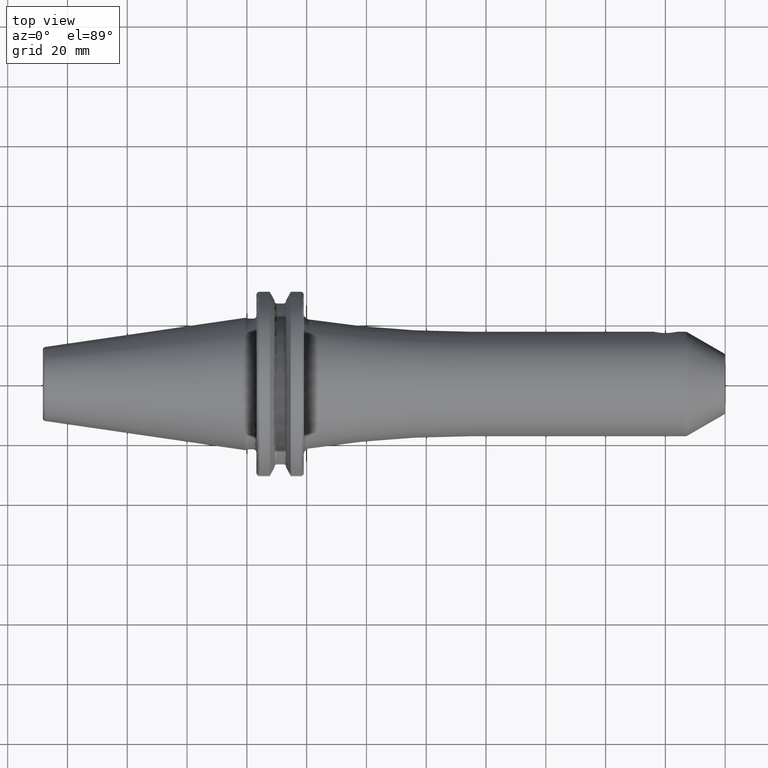
[diagram: clean part render]
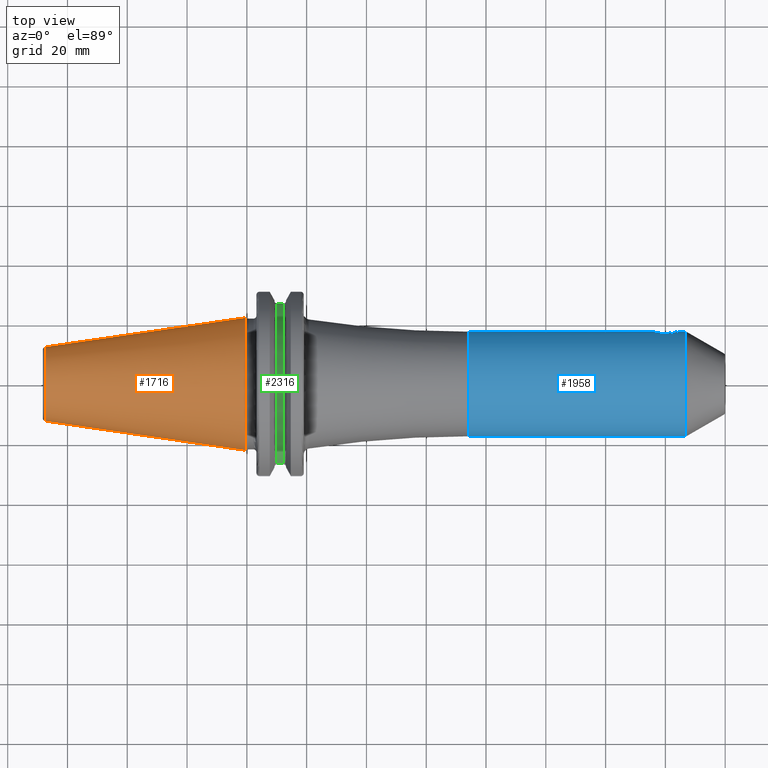
[diagram: same view with three faces highlighted in distinct colors, each labeled with its STEP entity id]
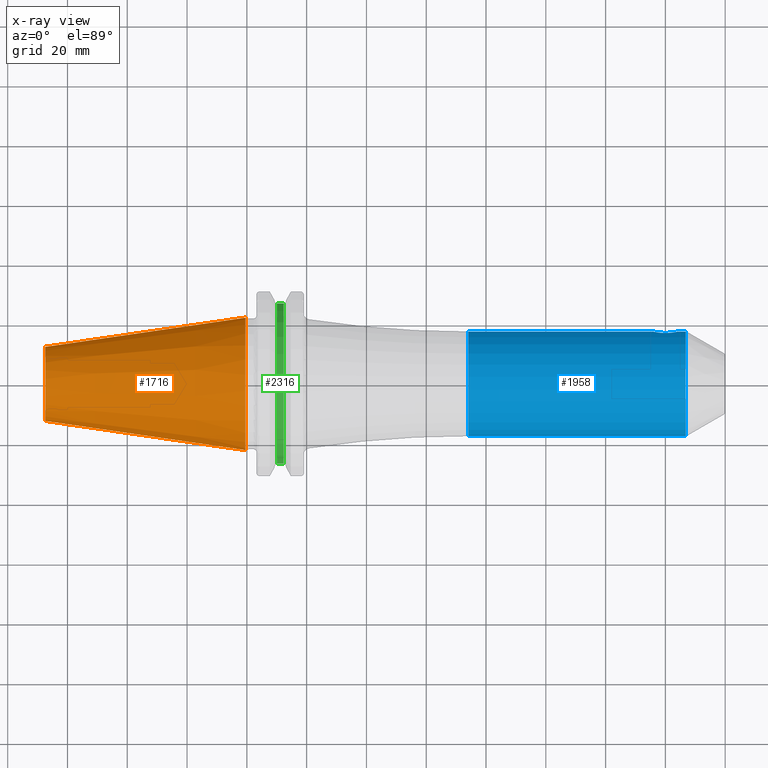
[diagram: x-ray of the same camera — body ghosted, the three highlighted faces saturated]
A machine part, top view with three faces highlighted in distinct colors.
The next image is the same camera in x-ray (body ghosted, the three faces saturated) — at least one of them is partly hidden behind the body in this view.
Their STEP definitions:

[orange] entity #1716 — the highlighted conical surface has half-angle 8.298 deg.
#37=CARTESIAN_POINT('',(-6.743710273571E1,0.E0,0.E0));
#38=DIRECTION('',(1.E0,0.E0,0.E0));
#39=DIRECTION('',(0.E0,1.E0,0.E0));
#40=AXIS2_PLACEMENT_3D('',#37,#38,#39);
#42=CARTESIAN_POINT('',(-4.896823332305E-1,0.E0,0.E0));
#43=DIRECTION('',(1.E0,0.E0,0.E0));
#44=DIRECTION('',(0.E0,1.E0,0.E0));
#45=AXIS2_PLACEMENT_3D('',#42,#43,#44);
#47=DIRECTION('',(-9.895312636440E-1,-1.443186691705E-1,0.E0));
#48=VECTOR('',#47,6.765568998391E1);
#49=CARTESIAN_POINT('',(-4.896823332305E-1,2.215358204157E1,0.E0));
#50=LINE('',#49,#48);
#51=DIRECTION('',(-9.895312636440E-1,1.443186691705E-1,0.E0));
#52=VECTOR('',#51,6.765568998391E1);
#53=CARTESIAN_POINT('',(-4.896823332305E-1,-2.215358204157E1,0.E0));
#54=LINE('',#53,#52);
#1386=CARTESIAN_POINT('',(-6.743710273571E1,1.238960290128E1,0.E0));
#1388=VERTEX_POINT('',#1386);
#1390=CARTESIAN_POINT('',(-6.743710273571E1,-1.238960290128E1,0.E0));
#1392=VERTEX_POINT('',#1390);
#1454=CARTESIAN_POINT('',(-4.896823332305E-1,2.215358204157E1,0.E0));
#1455=VERTEX_POINT('',#1454);
#1456=CARTESIAN_POINT('',(-4.896823332305E-1,-2.215358204157E1,0.E0));
#1457=VERTEX_POINT('',#1456);
#1702=CARTESIAN_POINT('',(-3.396339253447E1,0.E0,0.E0));
#1703=DIRECTION('',(1.E0,0.E0,0.E0));
#1704=DIRECTION('',(0.E0,-1.E0,0.E0));
#1705=AXIS2_PLACEMENT_3D('',#1702,#1703,#1704);
#1706=CONICAL_SURFACE('',#1705,1.727159247143E1,8.297826828206E0);
#1708=ORIENTED_EDGE('',*,*,#1707,.F.);
#1710=ORIENTED_EDGE('',*,*,#1709,.T.);
#1712=ORIENTED_EDGE('',*,*,#1711,.T.);
#1713=ORIENTED_EDGE('',*,*,#1695,.F.);
#1714=EDGE_LOOP('',(#1708,#1710,#1712,#1713));
#1715=FACE_OUTER_BOUND('',#1714,.F.);
#1716=ADVANCED_FACE('',(#1715),#1706,.T.);
#41=CIRCLE('',#40,1.238960290128E1);
#46=CIRCLE('',#45,2.215358204157E1);
#1695=EDGE_CURVE('',#1388,#1392,#41,.T.);
#1707=EDGE_CURVE('',#1455,#1388,#50,.T.);
#1709=EDGE_CURVE('',#1455,#1457,#46,.T.);
#1711=EDGE_CURVE('',#1457,#1392,#54,.T.);

[blue] entity #1958 — the highlighted cylindrical surface (partial cylindrical patch) has radius 17.5 mm, axis along (1, 0, 0).
#225=DIRECTION('',(-1.E0,0.E0,-1.077900183711E-13));
#226=VECTOR('',#225,7.268205080757E1);
#227=CARTESIAN_POINT('',(1.467320508076E2,-1.75E1,7.831452665642E-12));
#228=LINE('',#227,#226);
#234=DIRECTION('',(-1.E0,0.E0,3.155885247818E-12));
#235=VECTOR('',#234,2.482050807569E0);
#236=CARTESIAN_POINT('',(1.467320508076E2,1.75E1,-7.831995961991E-12));
#237=LINE('',#236,#235);
#261=DIRECTION('',(-1.E0,0.E0,0.E0));
#262=VECTOR('',#261,6.17E1);
#263=CARTESIAN_POINT('',(1.3575E2,1.75E1,0.E0));
#264=LINE('',#263,#262);
#265=CARTESIAN_POINT('',(7.405E1,0.E0,0.E0));
#266=DIRECTION('',(1.E0,0.E0,0.E0));
#267=DIRECTION('',(0.E0,1.E0,0.E0));
#268=AXIS2_PLACEMENT_3D('',#265,#266,#267);
#270=CARTESIAN_POINT('',(1.4425E2,1.75E1,0.E0));
#271=CARTESIAN_POINT('',(1.4425E2,1.75E1,2.278676570519E-1));
#272=CARTESIAN_POINT('',(1.442139953891E2,1.749120216321E1,6.785142573702E-1));
#273=CARTESIAN_POINT('',(1.440497416040E2,1.745203171727E1,1.349544966674E0));
#274=CARTESIAN_POINT('',(1.437805678172E2,1.739105675165E1,1.980794592051E0));
#275=CARTESIAN_POINT('',(1.434209064107E2,1.731585522841E1,2.551404466033E0));
#276=CARTESIAN_POINT('',(1.429779169871E2,1.723310522858E1,3.057278713351E0));
#277=CARTESIAN_POINT('',(1.424506090528E2,1.714897533070E1,3.495377039895E0));
#278=CARTESIAN_POINT('',(1.418453659631E2,1.707221628384E1,3.849926323690E0));
#279=CARTESIAN_POINT('',(1.411771795359E2,1.701192107247E1,4.105925484410E0));
#280=CARTESIAN_POINT('',(1.404244845071E2,1.697540010114E1,4.252879441657E0));
#281=CARTESIAN_POINT('',(1.396363646843E2,1.697395343074E1,4.258578046931E0));
#282=CARTESIAN_POINT('',(1.388796339850E2,1.700800053336E1,4.121973683701E0));
#283=CARTESIAN_POINT('',(1.382040782193E2,1.706682808551E1,3.873576730843E0));
#284=CARTESIAN_POINT('',(1.375886445233E2,1.714328886166E1,3.523080192707E0));
#285=CARTESIAN_POINT('',(1.370506408094E2,1.722809863779E1,3.085412924890E0));
#286=CARTESIAN_POINT('',(1.365981224097E2,1.731203733127E1,2.577456377236E0));
#287=CARTESIAN_POINT('',(1.362299703234E2,1.738872607665E1,2.001747237652E0));
#288=CARTESIAN_POINT('',(1.359548195628E2,1.745095563577E1,1.364458739173E0));
#289=CARTESIAN_POINT('',(1.357868504733E2,1.749099406596E1,6.863303247797E-1));
#290=CARTESIAN_POINT('',(1.3575E2,1.75E1,2.305520693747E-1));
#291=CARTESIAN_POINT('',(1.3575E2,1.75E1,0.E0));
#293=CARTESIAN_POINT('',(1.467320508076E2,0.E0,0.E0));
#294=DIRECTION('',(-1.E0,0.E0,0.E0));
#295=DIRECTION('',(0.E0,-1.E0,0.E0));
#296=AXIS2_PLACEMENT_3D('',#293,#294,#295);
#1613=CARTESIAN_POINT('',(1.467320508076E2,1.75E1,0.E0));
#1614=CARTESIAN_POINT('',(1.467320508076E2,-1.75E1,0.E0));
#1615=VERTEX_POINT('',#1613);
#1616=VERTEX_POINT('',#1614);
#1638=VERTEX_POINT('',#270);
#1639=VERTEX_POINT('',#291);
#1646=CARTESIAN_POINT('',(7.405E1,1.75E1,0.E0));
#1647=CARTESIAN_POINT('',(7.405E1,-1.75E1,0.E0));
#1648=VERTEX_POINT('',#1646);
#1649=VERTEX_POINT('',#1647);
#1943=CARTESIAN_POINT('',(1.20025E1,0.E0,0.E0));
#1944=DIRECTION('',(1.E0,0.E0,0.E0));
#1945=DIRECTION('',(0.E0,-1.E0,0.E0));
#1946=AXIS2_PLACEMENT_3D('',#1943,#1944,#1945);
#1947=CYLINDRICAL_SURFACE('',#1946,1.75E1);
#1948=ORIENTED_EDGE('',*,*,#1904,.F.);
#1949=ORIENTED_EDGE('',*,*,#1938,.F.);
#1951=ORIENTED_EDGE('',*,*,#1950,.F.);
#1952=ORIENTED_EDGE('',*,*,#1934,.F.);
#1954=ORIENTED_EDGE('',*,*,#1953,.F.);
#1955=ORIENTED_EDGE('',*,*,#1930,.T.);
#1956=EDGE_LOOP('',(#1948,#1949,#1951,#1952,#1954,#1955));
#1957=FACE_OUTER_BOUND('',#1956,.F.);
#1958=ADVANCED_FACE('',(#1957),#1947,.T.);
#269=CIRCLE('',#268,1.75E1);
#292=B_SPLINE_CURVE_WITH_KNOTS('',3,(#270,#271,#272,#273,#274,#275,#276,#277,
#278,#279,#280,#281,#282,#283,#284,#285,#286,#287,#288,#289,#290,#291),
.UNSPECIFIED.,.F.,.F.,(4,1,1,1,1,1,1,1,1,1,1,1,1,1,1,1,1,1,1,4),(0.E0,
5.263157894737E-2,1.052631578947E-1,1.578947368421E-1,2.105263157895E-1,
2.631578947368E-1,3.157894736842E-1,3.684210526316E-1,4.210526315789E-1,
4.736842105263E-1,5.263157894737E-1,5.789473684211E-1,6.315789473684E-1,
6.842105263158E-1,7.368421052632E-1,7.894736842105E-1,8.421052631579E-1,
8.947368421053E-1,9.473684210526E-1,1.E0),.UNSPECIFIED.);
#297=CIRCLE('',#296,1.75E1);
#1904=EDGE_CURVE('',#1648,#1649,#269,.T.);
#1930=EDGE_CURVE('',#1616,#1649,#228,.T.);
#1934=EDGE_CURVE('',#1615,#1638,#237,.T.);
#1938=EDGE_CURVE('',#1639,#1648,#264,.T.);
#1950=EDGE_CURVE('',#1638,#1639,#292,.T.);
#1953=EDGE_CURVE('',#1616,#1615,#297,.T.);

[green] entity #2316 — the highlighted cylindrical surface (partial cylindrical patch) has radius 28 mm, axis along (1, 0, 0).
#511=CARTESIAN_POINT('',(1.00125E1,2.680279836137E1,8.1E0));
#531=CARTESIAN_POINT('',(1.00125E1,-2.680279836137E1,8.1E0));
#538=DIRECTION('',(1.E0,0.E0,0.E0));
#539=VECTOR('',#538,2.325E0);
#540=CARTESIAN_POINT('',(1.00125E1,2.680279836137E1,8.1E0));
#541=LINE('',#540,#539);
#542=DIRECTION('',(1.E0,0.E0,0.E0));
#543=VECTOR('',#542,2.325E0);
#544=CARTESIAN_POINT('',(1.00125E1,-2.680279836137E1,8.1E0));
#545=LINE('',#544,#543);
#546=CARTESIAN_POINT('',(1.00125E1,0.E0,0.E0));
#547=DIRECTION('',(1.E0,0.E0,0.E0));
#548=DIRECTION('',(0.E0,9.572427986202E-1,2.892857142857E-1));
#549=AXIS2_PLACEMENT_3D('',#546,#547,#548);
#573=CARTESIAN_POINT('',(1.23375E1,0.E0,0.E0));
#574=DIRECTION('',(1.E0,0.E0,0.E0));
#575=DIRECTION('',(0.E0,9.572427986202E-1,2.892857142857E-1));
#576=AXIS2_PLACEMENT_3D('',#573,#574,#575);
#1482=VERTEX_POINT('',#511);
#1483=VERTEX_POINT('',#531);
#1484=CARTESIAN_POINT('',(1.23375E1,2.680279836137E1,8.1E0));
#1485=VERTEX_POINT('',#1484);
#1486=CARTESIAN_POINT('',(1.23375E1,-2.680279836137E1,8.1E0));
#1487=VERTEX_POINT('',#1486);
#2304=CARTESIAN_POINT('',(7.293041127536E0,0.E0,0.E0));
#2305=DIRECTION('',(1.E0,0.E0,0.E0));
#2306=DIRECTION('',(0.E0,-1.E0,0.E0));
#2307=AXIS2_PLACEMENT_3D('',#2304,#2305,#2306);
#2308=CYLINDRICAL_SURFACE('',#2307,2.8E1);
#2309=ORIENTED_EDGE('',*,*,#2237,.T.);
#2311=ORIENTED_EDGE('',*,*,#2310,.T.);
#2312=ORIENTED_EDGE('',*,*,#2266,.F.);
#2313=ORIENTED_EDGE('',*,*,#2297,.F.);
#2314=EDGE_LOOP('',(#2309,#2311,#2312,#2313));
#2315=FACE_OUTER_BOUND('',#2314,.F.);
#2316=ADVANCED_FACE('',(#2315),#2308,.T.);
#550=CIRCLE('',#549,2.8E1);
#577=CIRCLE('',#576,2.8E1);
#2237=EDGE_CURVE('',#1482,#1485,#541,.T.);
#2266=EDGE_CURVE('',#1483,#1487,#545,.T.);
#2297=EDGE_CURVE('',#1482,#1483,#550,.T.);
#2310=EDGE_CURVE('',#1485,#1487,#577,.T.);